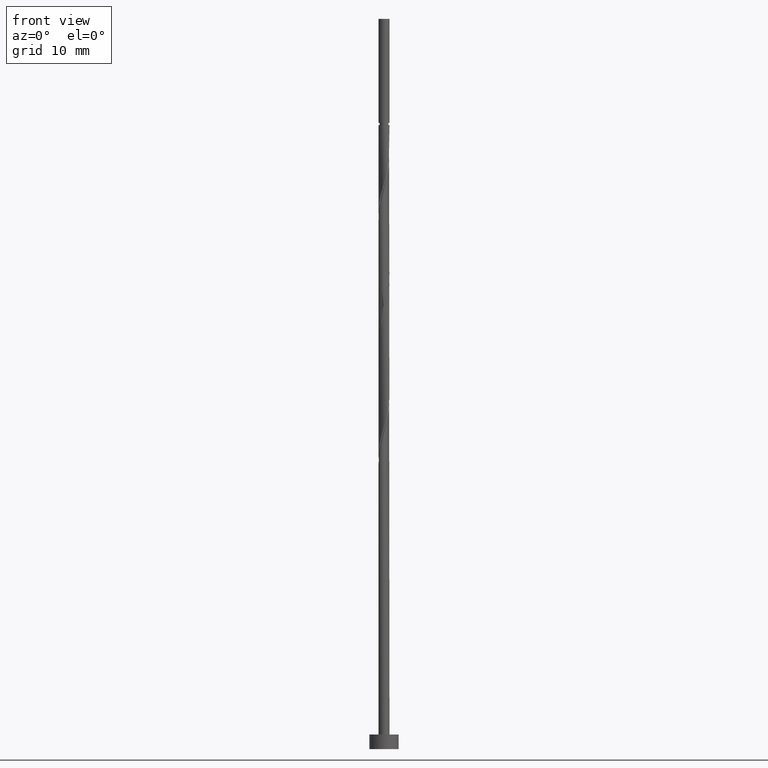
[diagram: clean part render]
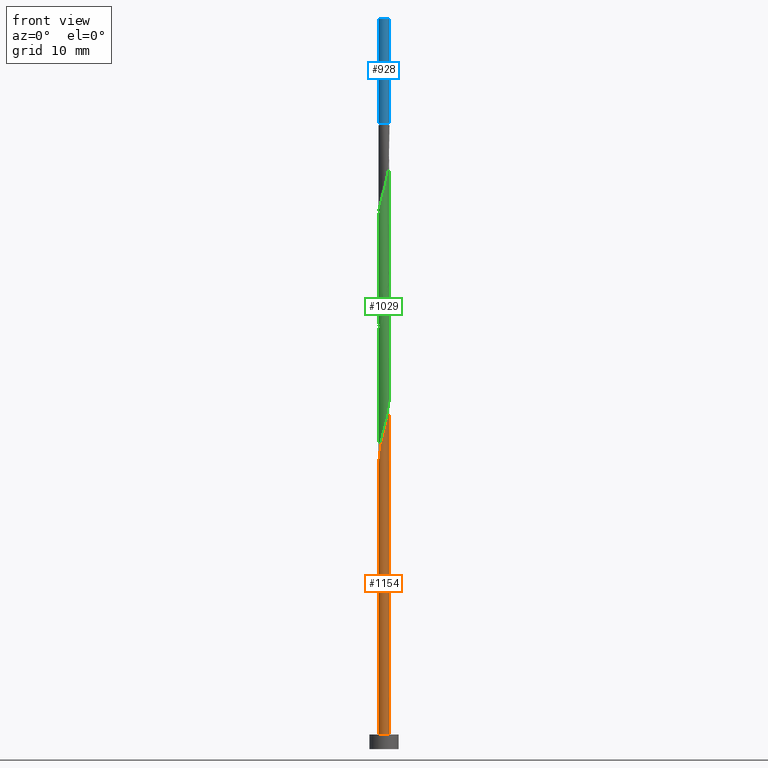
[diagram: same view with three faces highlighted in distinct colors, each labeled with its STEP entity id]
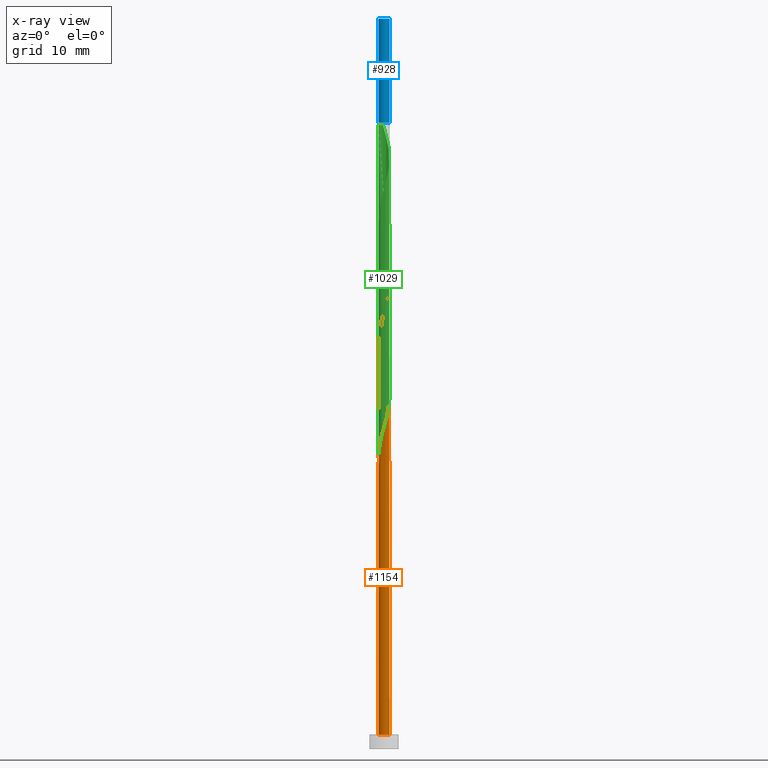
[diagram: x-ray of the same camera — body ghosted, the three highlighted faces saturated]
A machine part, front view with three faces highlighted in distinct colors.
The next image is the same camera in x-ray (body ghosted, the three faces saturated) — at least one of them is partly hidden behind the body in this view.
Their STEP definitions:

[orange] entity #1154 — the highlighted cylindrical surface (bore or boss wall) has radius 0.75 mm, axis along (-0, -0, -1).
#2 = CARTESIAN_POINT ( 'NONE',  ( -0.7111527295645598823, 0.2382473404528950844, 71.56784304584331835 ) ) ;
#8 = CARTESIAN_POINT ( 'NONE',  ( -0.5044158700291510034, 0.5705728983955322686, 70.17895415695438999 ) ) ;
#29 = LINE ( 'NONE', #452, #494 ) ;
#31 = VERTEX_POINT ( 'NONE', #885 ) ;
#39 = DIRECTION ( 'NONE',  ( -1.000000000000000000, 0.000000000000000000, 0.000000000000000000 ) ) ;
#45 = CARTESIAN_POINT ( 'NONE',  ( -0.5619046139985671706, 0.4967526595471062900, 38.23450971250995423 ) ) ;
#63 = CARTESIAN_POINT ( 'NONE',  ( -0.6979170351757160162, -0.2746121119170457647, 40.08636156436179476 ) ) ;
#66 = DIRECTION ( 'NONE',  ( -1.000000000000000000, 0.000000000000000000, 0.000000000000000000 ) ) ;
#69 = CARTESIAN_POINT ( 'NONE',  ( 0.1492481155659928227, -0.7350000000000012079, 43.79006526806549005 ) ) ;
#91 = CARTESIAN_POINT ( 'NONE',  ( -0.2788484463867148544, 0.7086835304058215490, 69.25302823102846617 ) ) ;
#107 = CARTESIAN_POINT ( 'NONE',  ( -0.7463385597360239210, -0.1515505083195083369, 56.29006526806550426 ) ) ;
#114 = ORIENTED_EDGE ( 'NONE', *, *, #139, .F. ) ;
#124 = LINE ( 'NONE', #336, #579 ) ;
#139 = EDGE_CURVE ( 'NONE', #498, #420, #373, .T. ) ;
#147 = CARTESIAN_POINT ( 'NONE',  ( 0.000000000000000000, 0.000000000000000000, 2.000000000000000000 ) ) ;
#156 = DIRECTION ( 'NONE',  ( -0.000000000000000000, -0.000000000000000000, -1.000000000000000000 ) ) ;
#164 = CARTESIAN_POINT ( 'NONE',  ( -0.7500000000000009992, 7.581525522548613133E-16, 39.09254371307674347 ) ) ;
#178 = CARTESIAN_POINT ( 'NONE',  ( -0.7463385597360239210, -0.1515505083195083369, 39.62339860139884706 ) ) ;
#187 = AXIS2_PLACEMENT_3D ( 'NONE', #1203, #1196, #670 ) ;
#193 = CARTESIAN_POINT ( 'NONE',  ( -0.01964778474527090896, 0.7613164695941806448, 68.32710230510254235 ) ) ;
#200 = CARTESIAN_POINT ( 'NONE',  ( 0.1111374524808014519, 0.7417199381546103476, 67.86413934213958044 ) ) ;
#206 = CARTESIAN_POINT ( 'NONE',  ( 0.5867795826949149252, -0.4671078262375646939, 62.30858378658402330 ) ) ;
#214 = CARTESIAN_POINT ( 'NONE',  ( -0.4743137173817256746, -0.5958316035796290544, 58.14191711991736611 ) ) ;
#237 = CARTESIAN_POINT ( 'NONE',  ( 0.2788484463867145768, -0.7086835304058217710, 44.25302823102846617 ) ) ;
#262 = CARTESIAN_POINT ( 'NONE',  ( 0.6494955106154084445, 0.3976737155145829150, 48.88265786065809237 ) ) ;
#271 = DIRECTION ( 'NONE',  ( 0.000000000000000000, -0.000000000000000000, -1.000000000000000000 ) ) ;
#276 = CARTESIAN_POINT ( 'NONE',  ( -0.1111374524808010217, -0.7417199381546104586, 42.86413934213958754 ) ) ;
#284 = CARTESIAN_POINT ( 'NONE',  ( 0.7463385597360239210, 0.1515505083195081981, 47.95673193473217566 ) ) ;
#290 = CARTESIAN_POINT ( 'NONE',  ( 0.2419226897068731397, 0.7221234067150404945, 67.40117637917663274 ) ) ;
#297 = CARTESIAN_POINT ( 'NONE',  ( 0.7111527295645598823, -0.2382473404528953342, 63.23450971250994712 ) ) ;
#304 = CARTESIAN_POINT ( 'NONE',  ( -0.1492481155659927117, 0.7350000000000012079, 35.45673193473216855 ) ) ;
#306 = CARTESIAN_POINT ( 'NONE',  ( 0.6691432953606790690, -0.3636427540795974522, 62.77154674954699232 ) ) ;
#312 = CARTESIAN_POINT ( 'NONE',  ( 0.2419226897068731397, 0.7221234067150404945, 50.73450971250995423 ) ) ;
#314 = VERTEX_POINT ( 'NONE', #1283 ) ;
#317 = AXIS2_PLACEMENT_3D ( 'NONE', #897, #271, #39 ) ;
#324 = DIRECTION ( 'NONE',  ( -0.000000000000000000, -0.000000000000000000, -1.000000000000000000 ) ) ;
#336 = CARTESIAN_POINT ( 'NONE',  ( -0.7500000000000001110, 0.000000000000000000, 100.0000000000000000 ) ) ;
#360 = CARTESIAN_POINT ( 'NONE',  ( -0.6979170351757162383, 0.2746121119170459313, 39.16043563843586384 ) ) ;
#364 = EDGE_LOOP ( 'NONE', ( #1014, #114, #544, #685, #796, #1065, #530, #1251, #1335 ) ) ;
#373 =( BOUNDED_CURVE ( )  B_SPLINE_CURVE ( 2, ( #164, #1313, #1004, #178, #63, #482, #1325, #495, #792, #1220, #276, #802, #69, #237, #488, #1332, #1018, #655, #387, #973, #1232, #284, #1206, #262, #1049, #824, #502, #312, #1353, #715, #1346, #1247, #937, #831, #1263, #810, #623, #610, #1131, #107, #728, #1157, #930, #214, #1362, #722, #403, #923, #410, #1255, #1148, #528, #206, #306, #297, #1143, #1239, #817, #522, #418, #1137, #1270, #630, #290, #200, #193, #1034, #91, #943, #8, #735, #707, #2, #1026, #616 ),
 .UNSPECIFIED., .F., .T. ) 
 B_SPLINE_CURVE_WITH_KNOTS ( ( 3, 2, 2, 2, 2, 2, 2, 2, 2, 2, 2, 2, 2, 2, 2, 2, 2, 2, 2, 2, 2, 2, 2, 2, 2, 2, 2, 2, 2, 2, 2, 2, 2, 2, 2, 2, 2, 3 ),
 ( 0.05452480538552890998, 0.05555555555555558023, 0.06944444444444441977, 0.08333333333333337034, 0.09722222222222220989, 0.1111111111111111605, 0.1250000000000000000, 0.1388888888888888395, 0.1527777777777777901, 0.1666666666666666297, 0.1805555555555555802, 0.1944444444444444198, 0.2083333333333333703, 0.2222222222222222099, 0.2361111111111111605, 0.2500000000000000000, 0.2638888888888888395, 0.2777777777777777901, 0.2916666666666666297, 0.3055555555555555802, 0.3194444444444444198, 0.3333333333333333703, 0.3472222222222222099, 0.3611111111111111605, 0.3750000000000000000, 0.3888888888888888395, 0.4027777777777777901, 0.4166666666666666297, 0.4305555555555555802, 0.4444444444444444198, 0.4583333333333333703, 0.4722222222222222099, 0.4861111111111111605, 0.5000000000000000000, 0.5138888888888888395, 0.5277777777777777901, 0.5416666666666667407, 0.5545248053855287296 ),
 .UNSPECIFIED. ) 
 CURVE ( )  GEOMETRIC_REPRESENTATION_ITEM ( )  RATIONAL_B_SPLINE_CURVE ( ( 0.9071930855141187022, 0.9080659294509664248, 0.9090909090909066181, 0.8952797754656411922, 0.9090909090909066181, 0.8952797754656411922, 0.9090909090909066181, 0.8952797754656411922, 0.9090909090909066181, 0.8952797754656411922, 0.9090909090909066181, 0.8952797754656411922, 0.9090909090909066181, 0.8952797754656411922, 0.9090909090909066181, 0.8952797754656411922, 0.9090909090909066181, 0.8952797754656411922, 0.9090909090909066181, 0.8952797754656411922, 0.9090909090909066181, 0.8952797754656411922, 0.9090909090909066181, 0.8952797754656411922, 0.9090909090909066181, 0.8952797754656411922, 0.9090909090909066181, 0.8952797754656411922, 0.9090909090909066181, 0.8952797754656411922, 0.9090909090909066181, 0.8952797754656411922, 0.9090909090909066181, 0.8952797754656411922, 0.9090909090909066181, 0.8952797754656411922, 0.9090909090909066181, 0.8952797754656411922, 0.9090909090909066181, 0.8952797754656411922, 0.9090909090909066181, 0.8952797754656411922, 0.9090909090909066181, 0.8952797754656411922, 0.9090909090909066181, 0.8952797754656411922, 0.9090909090909066181, 0.8952797754656411922, 0.9090909090909066181, 0.8952797754656411922, 0.9090909090909066181, 0.8952797754656411922, 0.9090909090909066181, 0.8952797754656411922, 0.9090909090909066181, 0.8952797754656411922, 0.9090909090909066181, 0.8952797754656411922, 0.9090909090909066181, 0.8952797754656411922, 0.9090909090909066181, 0.8952797754656411922, 0.9090909090909066181, 0.8952797754656411922, 0.9090909090909066181, 0.8952797754656411922, 0.9090909090909066181, 0.8952797754656411922, 0.9090909090909066181, 0.8952797754656411922, 0.9090909090909066181, 0.8952797754656411922, 0.9090909090909066181, 0.8963047551055816076, 0.9071930855141182581 ) ) 
 REPRESENTATION_ITEM ( '' )  );
#374 = CARTESIAN_POINT ( 'NONE',  ( -0.4743137173817259522, 0.5958316035796291654, 37.77154674954699942 ) ) ;
#382 = CYLINDRICAL_SURFACE ( 'NONE', #1262, 0.7500000000000001110 ) ;
#386 = CIRCLE ( 'NONE', #411, 0.7500000000000001110 ) ;
#387 = CARTESIAN_POINT ( 'NONE',  ( 0.7111527295645598823, -0.2382473404528953342, 46.56784304584328282 ) ) ;
#403 = CARTESIAN_POINT ( 'NONE',  ( -0.1111374524808010217, -0.7417199381546104586, 59.53080600880624473 ) ) ;
#410 = CARTESIAN_POINT ( 'NONE',  ( 0.1492481155659928227, -0.7350000000000012079, 60.45673193473216855 ) ) ;
#411 = AXIS2_PLACEMENT_3D ( 'NONE', #147, #1089, #1171 ) ;
#418 = CARTESIAN_POINT ( 'NONE',  ( 0.6494955106154084445, 0.3976737155145829150, 65.54932452732475667 ) ) ;
#420 = VERTEX_POINT ( 'NONE', #762 ) ;
#452 = CARTESIAN_POINT ( 'NONE',  ( -0.7500000000000001110, 0.000000000000000000, 100.0000000000000000 ) ) ;
#456 = CIRCLE ( 'NONE', #187, 0.7500000000000001110 ) ;
#467 = CARTESIAN_POINT ( 'NONE',  ( -0.3581182035442992406, 0.6589775051473349965, 37.30858378658403041 ) ) ;
#472 = CARTESIAN_POINT ( 'NONE',  ( -0.7463385597360241430, 0.1515505083195083647, 39.62339860139884706 ) ) ;
#482 = CARTESIAN_POINT ( 'NONE',  ( -0.6494955106154081115, -0.3976737155145834146, 40.54932452732477088 ) ) ;
#488 = CARTESIAN_POINT ( 'NONE',  ( 0.3916321582079329566, -0.6396282144006767423, 44.71599119399142808 ) ) ;
#494 = VECTOR ( 'NONE', #863, 1000.000000000000000 ) ;
#495 = CARTESIAN_POINT ( 'NONE',  ( -0.4743137173817256746, -0.5958316035796290544, 41.47525045325070181 ) ) ;
#498 = VERTEX_POINT ( 'NONE', #971 ) ;
#502 = CARTESIAN_POINT ( 'NONE',  ( 0.3581182035442994072, 0.6589775051473345524, 50.27154674954698521 ) ) ;
#518 = CARTESIAN_POINT ( 'NONE',  ( 0.1492481155659931280, 0.7350000000000013189, 35.45673193473216855 ) ) ;
#521 = EDGE_CURVE ( 'NONE', #314, #700, #386, .T. ) ;
#522 = CARTESIAN_POINT ( 'NONE',  ( 0.6979170351757161272, 0.2746121119170455427, 65.08636156436180897 ) ) ;
#528 = CARTESIAN_POINT ( 'NONE',  ( 0.5044158700291508923, -0.5705728983955322686, 61.84562082362106850 ) ) ;
#530 = ORIENTED_EDGE ( 'NONE', *, *, #764, .F. ) ;
#540 = CARTESIAN_POINT ( 'NONE',  ( -0.1492481155659927117, 0.7350000000000012079, 35.45673193473216855 ) ) ;
#544 = ORIENTED_EDGE ( 'NONE', *, *, #1010, .T. ) ;
#563 = EDGE_CURVE ( 'NONE', #420, #640, #29, .T. ) ;
#566 = CARTESIAN_POINT ( 'NONE',  ( -0.7500000000000014433, -7.021314277040079810E-16, 40.15425348972093644 ) ) ;
#571 =( BOUNDED_CURVE ( )  B_SPLINE_CURVE ( 2, ( #566, #987, #1322, #472, #360, #1210, #45, #374, #467, #690, #572, #993, #518 ),
 .UNSPECIFIED., .F., .T. ) 
 B_SPLINE_CURVE_WITH_KNOTS ( ( 3, 2, 2, 2, 2, 2, 3 ),
 ( 0.9295248053855290626, 0.9305555555555555802, 0.9444444444444444198, 0.9583333333333333703, 0.9722222222222222099, 0.9861111111111111605, 1.000000000000000000 ),
 .UNSPECIFIED. ) 
 CURVE ( )  GEOMETRIC_REPRESENTATION_ITEM ( )  RATIONAL_B_SPLINE_CURVE ( ( 0.9071930855141208117, 0.9080659294509685342, 0.9090909090909087276, 0.8952797754656430795, 0.9090909090909087276, 0.8952797754656430795, 0.9090909090909087276, 0.8952797754656430795, 0.9090909090909087276, 0.8952797754656430795, 0.9090909090909087276, 0.8952797754656430795, 0.9090909090909087276 ) ) 
 REPRESENTATION_ITEM ( '' )  );
#572 = CARTESIAN_POINT ( 'NONE',  ( -0.1111374524808009523, 0.7417199381546109027, 36.38265786065808527 ) ) ;
#579 = VECTOR ( 'NONE', #324, 1000.000000000000000 ) ;
#610 = CARTESIAN_POINT ( 'NONE',  ( -0.7531621637684404735, 0.1128519268261927722, 55.36413934213959465 ) ) ;
#615 = CARTESIAN_POINT ( 'NONE',  ( -0.2788484463867148544, 0.7086835304058215490, 35.91969489769515178 ) ) ;
#616 = CARTESIAN_POINT ( 'NONE',  ( -0.7500000000000009992, -2.035434192014282670E-16, 72.42587704641009339 ) ) ;
#623 = CARTESIAN_POINT ( 'NONE',  ( -0.7111527295645598823, 0.2382473404528950844, 54.90117637917662563 ) ) ;
#630 = CARTESIAN_POINT ( 'NONE',  ( 0.3581182035442994072, 0.6589775051473345524, 66.93821341621367083 ) ) ;
#640 = VERTEX_POINT ( 'NONE', #1142 ) ;
#655 = CARTESIAN_POINT ( 'NONE',  ( 0.6691432953606790690, -0.3636427540795974522, 46.10488008288032802 ) ) ;
#662 =( BOUNDED_CURVE ( )  B_SPLINE_CURVE ( 2, ( #304, #615, #1038, #1360, #1017, #830, #727, #1147, #1047 ),
 .UNSPECIFIED., .F., .F. ) 
 B_SPLINE_CURVE_WITH_KNOTS ( ( 3, 2, 2, 2, 3 ),
 ( 0.000000000000000000, 0.01388888888888883955, 0.02777777777777779011, 0.04166666666666662966, 0.05452480538552890998 ),
 .UNSPECIFIED. ) 
 CURVE ( )  GEOMETRIC_REPRESENTATION_ITEM ( )  RATIONAL_B_SPLINE_CURVE ( ( 0.9090909090909066181, 0.8952797754656411922, 0.9090909090909066181, 0.8952797754656411922, 0.9090909090909066181, 0.8952797754656411922, 0.9090909090909066181, 0.8963047551055813855, 0.9071930855141187022 ) ) 
 REPRESENTATION_ITEM ( '' )  );
#670 = DIRECTION ( 'NONE',  ( 1.000000000000000000, 0.000000000000000000, 0.000000000000000000 ) ) ;
#685 = ORIENTED_EDGE ( 'NONE', *, *, #521, .T. ) ;
#690 = CARTESIAN_POINT ( 'NONE',  ( -0.2419226897068727788, 0.7221234067150408276, 36.84562082362106850 ) ) ;
#700 = VERTEX_POINT ( 'NONE', #936 ) ;
#707 = CARTESIAN_POINT ( 'NONE',  ( -0.6691432953606790690, 0.3636427540795973967, 71.10488008288032802 ) ) ;
#715 = CARTESIAN_POINT ( 'NONE',  ( -0.01964778474527090896, 0.7613164695941806448, 51.66043563843587805 ) ) ;
#722 = CARTESIAN_POINT ( 'NONE',  ( -0.2419226897068726401, -0.7221234067150404945, 59.06784304584328993 ) ) ;
#727 = CARTESIAN_POINT ( 'NONE',  ( -0.7111527295645598823, 0.2382473404528950844, 38.23450971250994712 ) ) ;
#728 = CARTESIAN_POINT ( 'NONE',  ( -0.6979170351757160162, -0.2746121119170457647, 56.75302823102847327 ) ) ;
#735 = CARTESIAN_POINT ( 'NONE',  ( -0.5867795826949149252, 0.4671078262375646939, 70.64191711991735190 ) ) ;
#762 = CARTESIAN_POINT ( 'NONE',  ( -0.7500000000000009992, -2.035434192014282670E-16, 72.42587704641009339 ) ) ;
#764 = EDGE_CURVE ( 'NONE', #813, #498, #662, .T. ) ;
#792 = CARTESIAN_POINT ( 'NONE',  ( -0.3581182035442992961, -0.6589775051473345524, 41.93821341621366372 ) ) ;
#796 = ORIENTED_EDGE ( 'NONE', *, *, #1055, .T. ) ;
#802 = CARTESIAN_POINT ( 'NONE',  ( 0.01964778474527069732, -0.7613164695941807558, 43.32710230510255656 ) ) ;
#810 = CARTESIAN_POINT ( 'NONE',  ( -0.6691432953606790690, 0.3636427540795973967, 54.43821341621366372 ) ) ;
#813 = VERTEX_POINT ( 'NONE', #540 ) ;
#817 = CARTESIAN_POINT ( 'NONE',  ( 0.7463385597360239210, 0.1515505083195081981, 64.62339860139884706 ) ) ;
#824 = CARTESIAN_POINT ( 'NONE',  ( 0.4743137173817257857, 0.5958316035796289434, 49.80858378658402330 ) ) ;
#830 = CARTESIAN_POINT ( 'NONE',  ( -0.6691432953606790690, 0.3636427540795973967, 37.77154674954699942 ) ) ;
#831 = CARTESIAN_POINT ( 'NONE',  ( -0.5044158700291510034, 0.5705728983955322686, 53.51228749028773279 ) ) ;
#863 = DIRECTION ( 'NONE',  ( -0.000000000000000000, -0.000000000000000000, -1.000000000000000000 ) ) ;
#885 = CARTESIAN_POINT ( 'NONE',  ( 0.1492481155659931280, 0.7350000000000013189, 35.45673193473216855 ) ) ;
#897 = CARTESIAN_POINT ( 'NONE',  ( 0.000000000000000000, 0.000000000000000000, 35.45673193473216855 ) ) ;
#923 = CARTESIAN_POINT ( 'NONE',  ( 0.01964778474527069732, -0.7613164695941807558, 59.99376897176922085 ) ) ;
#930 = CARTESIAN_POINT ( 'NONE',  ( -0.5619046139985669486, -0.4967526595471060125, 57.67895415695437578 ) ) ;
#936 = CARTESIAN_POINT ( 'NONE',  ( 0.7500000000000001110, 0.000000000000000000, 2.000000000000000000 ) ) ;
#937 = CARTESIAN_POINT ( 'NONE',  ( -0.3916321582079329566, 0.6396282144006767423, 53.04932452732476378 ) ) ;
#943 = CARTESIAN_POINT ( 'NONE',  ( -0.3916321582079329566, 0.6396282144006767423, 69.71599119399144229 ) ) ;
#971 = CARTESIAN_POINT ( 'NONE',  ( -0.7500000000000009992, 7.581525522548613133E-16, 39.09254371307674347 ) ) ;
#973 = CARTESIAN_POINT ( 'NONE',  ( 0.7531621637684404735, -0.1128519268261931191, 47.03080600880625184 ) ) ;
#987 = CARTESIAN_POINT ( 'NONE',  ( -0.7500000000000013323, 0.009676255749015327118, 40.12023611578857896 ) ) ;
#993 = CARTESIAN_POINT ( 'NONE',  ( 0.01964778474527093324, 0.7613164695941809779, 35.91969489769513757 ) ) ;
#1004 = CARTESIAN_POINT ( 'NONE',  ( -0.7497503617522318642, -0.01934929074665777890, 39.16043563843587805 ) ) ;
#1010 = EDGE_CURVE ( 'NONE', #498, #314, #124, .T. ) ;
#1014 = ORIENTED_EDGE ( 'NONE', *, *, #563, .F. ) ;
#1017 = CARTESIAN_POINT ( 'NONE',  ( -0.5867795826949149252, 0.4671078262375646939, 37.30858378658403041 ) ) ;
#1018 = CARTESIAN_POINT ( 'NONE',  ( 0.5867795826949149252, -0.4671078262375646939, 45.64191711991735900 ) ) ;
#1026 = CARTESIAN_POINT ( 'NONE',  ( -0.7499999999999997780, 0.1222907788653462419, 71.99595753404443599 ) ) ;
#1034 = CARTESIAN_POINT ( 'NONE',  ( -0.1492481155659927117, 0.7350000000000012079, 68.79006526806551847 ) ) ;
#1038 = CARTESIAN_POINT ( 'NONE',  ( -0.3916321582079329566, 0.6396282144006767423, 36.38265786065809948 ) ) ;
#1047 = CARTESIAN_POINT ( 'NONE',  ( -0.7500000000000009992, 7.581525522548613133E-16, 39.09254371307674347 ) ) ;
#1049 = CARTESIAN_POINT ( 'NONE',  ( 0.5619046139985668376, 0.4967526595471062345, 49.34562082362106850 ) ) ;
#1055 = EDGE_CURVE ( 'NONE', #700, #314, #456, .T. ) ;
#1063 = CIRCLE ( 'NONE', #317, 0.7500000000000001110 ) ;
#1065 = ORIENTED_EDGE ( 'NONE', *, *, #1010, .F. ) ;
#1089 = DIRECTION ( 'NONE',  ( 0.000000000000000000, 0.000000000000000000, 1.000000000000000000 ) ) ;
#1109 = CARTESIAN_POINT ( 'NONE',  ( 0.000000000000000000, 0.000000000000000000, 100.0000000000000000 ) ) ;
#1131 = CARTESIAN_POINT ( 'NONE',  ( -0.7497503617522318642, -0.01934929074665777890, 55.82710230510255656 ) ) ;
#1137 = CARTESIAN_POINT ( 'NONE',  ( 0.5619046139985668376, 0.4967526595471062345, 66.01228749028773279 ) ) ;
#1142 = CARTESIAN_POINT ( 'NONE',  ( -0.7500000000000014433, -7.021314277040079810E-16, 40.15425348972093644 ) ) ;
#1143 = CARTESIAN_POINT ( 'NONE',  ( 0.7531621637684404735, -0.1128519268261931191, 63.69747267547291614 ) ) ;
#1147 = CARTESIAN_POINT ( 'NONE',  ( -0.7500000000000004441, 0.1222907788653445349, 38.66262420071113581 ) ) ;
#1148 = CARTESIAN_POINT ( 'NONE',  ( 0.3916321582079329566, -0.6396282144006767423, 61.38265786065810659 ) ) ;
#1154 = ADVANCED_FACE ( 'NONE', ( #1305 ), #382, .T. ) ;
#1157 = CARTESIAN_POINT ( 'NONE',  ( -0.6494955106154081115, -0.3976737155145834146, 57.21599119399142808 ) ) ;
#1171 = DIRECTION ( 'NONE',  ( 1.000000000000000000, 0.000000000000000000, 0.000000000000000000 ) ) ;
#1196 = DIRECTION ( 'NONE',  ( 0.000000000000000000, 0.000000000000000000, 1.000000000000000000 ) ) ;
#1203 = CARTESIAN_POINT ( 'NONE',  ( 0.000000000000000000, 0.000000000000000000, 2.000000000000000000 ) ) ;
#1206 = CARTESIAN_POINT ( 'NONE',  ( 0.6979170351757161272, 0.2746121119170455427, 48.41969489769512336 ) ) ;
#1210 = CARTESIAN_POINT ( 'NONE',  ( -0.6494955106154085556, 0.3976737155145836922, 38.69747267547292324 ) ) ;
#1220 = CARTESIAN_POINT ( 'NONE',  ( -0.2419226897068726401, -0.7221234067150404945, 42.40117637917662563 ) ) ;
#1232 = CARTESIAN_POINT ( 'NONE',  ( 0.7497503617522318642, 0.01934929074665785176, 47.49376897176921375 ) ) ;
#1239 = CARTESIAN_POINT ( 'NONE',  ( 0.7497503617522318642, 0.01934929074665785176, 64.16043563843587094 ) ) ;
#1246 = EDGE_CURVE ( 'NONE', #813, #31, #1063, .T. ) ;
#1247 = CARTESIAN_POINT ( 'NONE',  ( -0.2788484463867148544, 0.7086835304058215490, 52.58636156436181608 ) ) ;
#1251 = ORIENTED_EDGE ( 'NONE', *, *, #1246, .T. ) ;
#1255 = CARTESIAN_POINT ( 'NONE',  ( 0.2788484463867145768, -0.7086835304058217710, 60.91969489769514468 ) ) ;
#1262 = AXIS2_PLACEMENT_3D ( 'NONE', #1109, #156, #66 ) ;
#1263 = CARTESIAN_POINT ( 'NONE',  ( -0.5867795826949149252, 0.4671078262375646939, 53.97525045325069470 ) ) ;
#1265 = EDGE_CURVE ( 'NONE', #640, #31, #571, .T. ) ;
#1270 = CARTESIAN_POINT ( 'NONE',  ( 0.4743137173817257857, 0.5958316035796289434, 66.47525045325069470 ) ) ;
#1283 = CARTESIAN_POINT ( 'NONE',  ( -0.7500000000000001110, 0.000000000000000000, 2.000000000000000000 ) ) ;
#1305 = FACE_OUTER_BOUND ( 'NONE', #364, .T. ) ;
#1313 = CARTESIAN_POINT ( 'NONE',  ( -0.7500000000000009992, -0.009676255749013838725, 39.12656108700910096 ) ) ;
#1322 = CARTESIAN_POINT ( 'NONE',  ( -0.7497503617522321973, 0.01934929074665782747, 40.08636156436180897 ) ) ;
#1325 = CARTESIAN_POINT ( 'NONE',  ( -0.5619046139985669486, -0.4967526595471060125, 41.01228749028771858 ) ) ;
#1332 = CARTESIAN_POINT ( 'NONE',  ( 0.5044158700291508923, -0.5705728983955322686, 45.17895415695440420 ) ) ;
#1335 = ORIENTED_EDGE ( 'NONE', *, *, #1265, .F. ) ;
#1346 = CARTESIAN_POINT ( 'NONE',  ( -0.1492481155659927117, 0.7350000000000012079, 52.12339860139883285 ) ) ;
#1353 = CARTESIAN_POINT ( 'NONE',  ( 0.1111374524808014519, 0.7417199381546103476, 51.19747267547291614 ) ) ;
#1360 = CARTESIAN_POINT ( 'NONE',  ( -0.5044158700291510034, 0.5705728983955322686, 36.84562082362106850 ) ) ;
#1362 = CARTESIAN_POINT ( 'NONE',  ( -0.3581182035442992961, -0.6589775051473345524, 58.60488008288032802 ) ) ;

[blue] entity #928 — the highlighted cylindrical surface (edge-blend (fillet) strip) has radius 0.75 mm, axis along (-0, -0, -1).
#10 = ORIENTED_EDGE ( 'NONE', *, *, #1130, .T. ) ;
#112 = DIRECTION ( 'NONE',  ( -1.000000000000000000, 0.000000000000000000, 0.000000000000000000 ) ) ;
#196 = EDGE_CURVE ( 'NONE', #320, #1174, #625, .T. ) ;
#209 = AXIS2_PLACEMENT_3D ( 'NONE', #509, #602, #112 ) ;
#216 = VERTEX_POINT ( 'NONE', #352 ) ;
#249 = DIRECTION ( 'NONE',  ( 0.000000000000000000, 0.000000000000000000, 1.000000000000000000 ) ) ;
#265 = CARTESIAN_POINT ( 'NONE',  ( -0.7500000000000015543, 0.000000000000000000, 85.75673193473217282 ) ) ;
#287 = ORIENTED_EDGE ( 'NONE', *, *, #401, .F. ) ;
#296 = EDGE_CURVE ( 'NONE', #839, #320, #1276, .T. ) ;
#299 = VECTOR ( 'NONE', #876, 1000.000000000000000 ) ;
#320 = VERTEX_POINT ( 'NONE', #742 ) ;
#350 = CARTESIAN_POINT ( 'NONE',  ( 0.7500000000000001110, 9.184850993605150903E-17, 100.0000000000000000 ) ) ;
#352 = CARTESIAN_POINT ( 'NONE',  ( -0.7500000000000001110, 0.000000000000000000, 100.0000000000000000 ) ) ;
#401 = EDGE_CURVE ( 'NONE', #216, #839, #1022, .T. ) ;
#443 = DIRECTION ( 'NONE',  ( -1.000000000000000000, 0.000000000000000000, 0.000000000000000000 ) ) ;
#509 = CARTESIAN_POINT ( 'NONE',  ( 0.000000000000000000, 0.000000000000000000, 85.75673193473217282 ) ) ;
#602 = DIRECTION ( 'NONE',  ( -0.000000000000000000, -0.000000000000000000, -1.000000000000000000 ) ) ;
#625 = CIRCLE ( 'NONE', #209, 0.7500000000000015543 ) ;
#648 = ORIENTED_EDGE ( 'NONE', *, *, #196, .F. ) ;
#657 = CARTESIAN_POINT ( 'NONE',  ( 0.000000000000000000, 0.000000000000000000, 100.0000000000000000 ) ) ;
#689 = AXIS2_PLACEMENT_3D ( 'NONE', #977, #249, #955 ) ;
#742 = CARTESIAN_POINT ( 'NONE',  ( 0.7500000000000014433, 9.184850993605166926E-17, 85.75673193473217282 ) ) ;
#753 = FACE_OUTER_BOUND ( 'NONE', #1285, .T. ) ;
#827 = ORIENTED_EDGE ( 'NONE', *, *, #296, .F. ) ;
#839 = VERTEX_POINT ( 'NONE', #350 ) ;
#842 = VECTOR ( 'NONE', #963, 1000.000000000000000 ) ;
#876 = DIRECTION ( 'NONE',  ( -0.000000000000000000, -0.000000000000000000, -1.000000000000000000 ) ) ;
#928 = ADVANCED_FACE ( 'NONE', ( #753 ), #1191, .T. ) ;
#955 = DIRECTION ( 'NONE',  ( 1.000000000000000000, 0.000000000000000000, 0.000000000000000000 ) ) ;
#961 = DIRECTION ( 'NONE',  ( -0.000000000000000000, -0.000000000000000000, -1.000000000000000000 ) ) ;
#963 = DIRECTION ( 'NONE',  ( -0.000000000000000000, -0.000000000000000000, -1.000000000000000000 ) ) ;
#977 = CARTESIAN_POINT ( 'NONE',  ( 0.000000000000000000, 0.000000000000000000, 100.0000000000000000 ) ) ;
#1007 = LINE ( 'NONE', #1217, #299 ) ;
#1022 = CIRCLE ( 'NONE', #689, 0.7500000000000001110 ) ;
#1130 = EDGE_CURVE ( 'NONE', #216, #1174, #1007, .T. ) ;
#1174 = VERTEX_POINT ( 'NONE', #265 ) ;
#1178 = AXIS2_PLACEMENT_3D ( 'NONE', #657, #961, #443 ) ;
#1186 = CARTESIAN_POINT ( 'NONE',  ( 0.7500000000000001110, 9.184850993605150903E-17, 100.0000000000000000 ) ) ;
#1191 = CYLINDRICAL_SURFACE ( 'NONE', #1178, 0.7500000000000001110 ) ;
#1217 = CARTESIAN_POINT ( 'NONE',  ( -0.7500000000000001110, 0.000000000000000000, 100.0000000000000000 ) ) ;
#1276 = LINE ( 'NONE', #1186, #842 ) ;
#1285 = EDGE_LOOP ( 'NONE', ( #827, #287, #10, #648 ) ) ;

[green] entity #1029 — the highlighted cylindrical surface (bore or boss wall) has radius 0.75 mm, axis along (-0, -0, -1).
#4 = ORIENTED_EDGE ( 'NONE', *, *, #724, .F. ) ;
#29 = LINE ( 'NONE', #452, #494 ) ;
#41 = CARTESIAN_POINT ( 'NONE',  ( -0.6691432953606796241, -0.3636427540795975633, 58.14191711991735190 ) ) ;
#47 = CARTESIAN_POINT ( 'NONE',  ( -0.7500000000000014433, -7.021314277040079810E-16, 40.15425348972093644 ) ) ;
#51 = CARTESIAN_POINT ( 'NONE',  ( 0.7500000000000015543, 3.940152426743236263E-16, 65.15425348972092934 ) ) ;
#53 = CARTESIAN_POINT ( 'NONE',  ( -0.5619046139985671706, 0.4967526595471062900, 54.90117637917661852 ) ) ;
#62 = CARTESIAN_POINT ( 'NONE',  ( -0.7111527295645602154, -0.2382473404528949179, 57.67895415695439709 ) ) ;
#68 = CARTESIAN_POINT ( 'NONE',  ( -0.7500000000000014433, 0.000000000000000000, 85.45673193473217566 ) ) ;
#84 = CARTESIAN_POINT ( 'NONE',  ( 0.1492481155659928227, -0.7350000000000012079, 77.12339860139884706 ) ) ;
#97 = CARTESIAN_POINT ( 'NONE',  ( -0.2419226897068726401, -0.7221234067150404945, 75.73450971250993291 ) ) ;
#101 = VECTOR ( 'NONE', #1243, 1000.000000000000000 ) ;
#116 = CYLINDRICAL_SURFACE ( 'NONE', #343, 0.7500000000000001110 ) ;
#121 = VERTEX_POINT ( 'NONE', #900 ) ;
#133 = CARTESIAN_POINT ( 'NONE',  ( -0.1492481155659876324, 0.7350000000000022071, 85.45673193473216145 ) ) ;
#150 = CARTESIAN_POINT ( 'NONE',  ( 0.5044158700291515585, 0.5705728983955323796, 67.40117637917661852 ) ) ;
#152 = CARTESIAN_POINT ( 'NONE',  ( -0.3916321582079331787, -0.6396282144006771864, 59.53080600880625184 ) ) ;
#158 = CARTESIAN_POINT ( 'NONE',  ( 0.7497503617522324193, -0.01934929074665811544, 48.41969489769514468 ) ) ;
#163 = CARTESIAN_POINT ( 'NONE',  ( 0.3581182035442992406, -0.6589775051473349965, 62.30858378658402330 ) ) ;
#167 = CARTESIAN_POINT ( 'NONE',  ( -0.7497503617522321973, 0.01934929074665782747, 73.41969489769512336 ) ) ;
#169 = LINE ( 'NONE', #1231, #1155 ) ;
#176 = CARTESIAN_POINT ( 'NONE',  ( -0.4743137173817259522, 0.5958316035796291654, 54.43821341621365661 ) ) ;
#197 = VERTEX_POINT ( 'NONE', #1289 ) ;
#205 = CARTESIAN_POINT ( 'NONE',  ( -0.1111374524808010217, -0.7417199381546104586, 76.19747267547292324 ) ) ;
#253 = DIRECTION ( 'NONE',  ( -1.000000000000000000, 0.000000000000000000, 0.000000000000000000 ) ) ;
#255 = CARTESIAN_POINT ( 'NONE',  ( -0.6979170351757162383, 0.2746121119170459313, 55.82710230510253524 ) ) ;
#259 = CARTESIAN_POINT ( 'NONE',  ( -0.4743137173817259522, 0.5958316035796291654, 71.10488008288032802 ) ) ;
#261 = DIRECTION ( 'NONE',  ( -0.000000000000000000, -0.000000000000000000, -1.000000000000000000 ) ) ;
#267 = CARTESIAN_POINT ( 'NONE',  ( 0.5619046139985670596, -0.4967526595471066231, 46.56784304584328282 ) ) ;
#274 = CARTESIAN_POINT ( 'NONE',  ( 0.4743137173817259522, -0.5958316035796291654, 62.77154674954699232 ) ) ;
#283 = CARTESIAN_POINT ( 'NONE',  ( 0.6691432953606796241, 0.3636427540795975077, 49.80858378658403041 ) ) ;
#295 = CARTESIAN_POINT ( 'NONE',  ( 0.7463385597360239210, 0.1515505083195081981, 81.29006526806550426 ) ) ;
#311 = CARTESIAN_POINT ( 'NONE',  ( -0.7500000000000011102, -0.009676255749012072777, 72.45989442034243666 ) ) ;
#316 = CARTESIAN_POINT ( 'NONE',  ( -0.7500000000000009992, -2.035434192014282670E-16, 72.42587704641009339 ) ) ;
#343 = AXIS2_PLACEMENT_3D ( 'NONE', #968, #437, #450 ) ;
#357 = CARTESIAN_POINT ( 'NONE',  ( -0.7531621637684410286, -0.1128519268261926889, 57.21599119399144229 ) ) ;
#363 = CARTESIAN_POINT ( 'NONE',  ( -0.2419226897068727788, 0.7221234067150408276, 53.51228749028773279 ) ) ;
#367 = DIRECTION ( 'NONE',  ( -0.000000000000000000, -0.000000000000000000, -1.000000000000000000 ) ) ;
#369 = CARTESIAN_POINT ( 'NONE',  ( 0.7463385597360241430, -0.1515505083195084757, 47.95673193473218276 ) ) ;
#376 = CARTESIAN_POINT ( 'NONE',  ( -0.3581182035442992406, 0.6589775051473349965, 53.97525045325069470 ) ) ;
#384 =( BOUNDED_CURVE ( )  B_SPLINE_CURVE ( 2, ( #316, #311, #409, #1025, #721, #601, #922, #417, #1245, #97, #205, #836, #84, #622, #508, #1345, #1156, #1352, #1261, #706, #501, #295, #713, #809, #822, #1136, #423, #929, #493, #1254, #734 ),
 .UNSPECIFIED., .F., .T. ) 
 B_SPLINE_CURVE_WITH_KNOTS ( ( 3, 2, 2, 2, 2, 2, 2, 2, 2, 2, 2, 2, 2, 2, 2, 3 ),
 ( 0.5545248053855287296, 0.5555555555555555802, 0.5694444444444444198, 0.5833333333333332593, 0.5972222222222222099, 0.6111111111111112715, 0.6250000000000001110, 0.6388888888888889506, 0.6527777777777779011, 0.6666666666666668517, 0.6805555555555556912, 0.6944444444444445308, 0.7083333333333334814, 0.7222222222222224319, 0.7361111111111113825, 0.7500000000000002220 ),
 .UNSPECIFIED. ) 
 CURVE ( )  GEOMETRIC_REPRESENTATION_ITEM ( )  RATIONAL_B_SPLINE_CURVE ( ( 0.9071930855141182581, 0.9080659294509662027, 0.9090909090909066181, 0.8952797754656411922, 0.9090909090909066181, 0.8952797754656411922, 0.9090909090909066181, 0.8952797754656411922, 0.9090909090909066181, 0.8952797754656411922, 0.9090909090909066181, 0.8952797754656411922, 0.9090909090909066181, 0.8952797754656411922, 0.9090909090909066181, 0.8952797754656411922, 0.9090909090909066181, 0.8952797754656411922, 0.9090909090909066181, 0.8952797754656411922, 0.9090909090909066181, 0.8952797754656411922, 0.9090909090909066181, 0.8952797754656411922, 0.9090909090909066181, 0.8952797754656411922, 0.9090909090909066181, 0.8952797754656411922, 0.9090909090909066181, 0.8952797754656409701, 0.9090909090909068402 ) ) 
 REPRESENTATION_ITEM ( '' )  );
#385 = CARTESIAN_POINT ( 'NONE',  ( 0.2788484463867149654, 0.7086835304058219931, 51.66043563843587805 ) ) ;
#409 = CARTESIAN_POINT ( 'NONE',  ( -0.7497503617522318642, -0.01934929074665777890, 72.49376897176922796 ) ) ;
#417 = CARTESIAN_POINT ( 'NONE',  ( -0.4743137173817256746, -0.5958316035796290544, 74.80858378658402330 ) ) ;
#420 = VERTEX_POINT ( 'NONE', #762 ) ;
#423 = CARTESIAN_POINT ( 'NONE',  ( 0.3581182035442994072, 0.6589775051473345524, 83.60488008288032802 ) ) ;
#437 = DIRECTION ( 'NONE',  ( -0.000000000000000000, -0.000000000000000000, -1.000000000000000000 ) ) ;
#450 = DIRECTION ( 'NONE',  ( -1.000000000000000000, 0.000000000000000000, 0.000000000000000000 ) ) ;
#452 = CARTESIAN_POINT ( 'NONE',  ( -0.7500000000000001110, 0.000000000000000000, 100.0000000000000000 ) ) ;
#462 = CARTESIAN_POINT ( 'NONE',  ( -0.6494955106154085556, 0.3976737155145836922, 72.03080600880623763 ) ) ;
#464 = CARTESIAN_POINT ( 'NONE',  ( 0.6494955106154085556, -0.3976737155145839697, 63.69747267547293035 ) ) ;
#469 = CARTESIAN_POINT ( 'NONE',  ( 0.2419226897068726678, -0.7221234067150408276, 61.84562082362107560 ) ) ;
#474 = CARTESIAN_POINT ( 'NONE',  ( 0.7497503617522324193, -0.01934929074665811544, 65.08636156436179476 ) ) ;
#480 = CARTESIAN_POINT ( 'NONE',  ( 0.3581182035442992406, -0.6589775051473349965, 45.64191711991736611 ) ) ;
#487 = CARTESIAN_POINT ( 'NONE',  ( -0.1492481155659930447, -0.7350000000000013189, 43.79006526806550426 ) ) ;
#493 = CARTESIAN_POINT ( 'NONE',  ( 0.1111374524808014519, 0.7417199381546103476, 84.53080600880625184 ) ) ;
#494 = VECTOR ( 'NONE', #863, 1000.000000000000000 ) ;
#501 = CARTESIAN_POINT ( 'NONE',  ( 0.7497503617522318642, 0.01934929074665785176, 80.82710230510257077 ) ) ;
#508 = CARTESIAN_POINT ( 'NONE',  ( 0.3916321582079329566, -0.6396282144006767423, 78.04932452732477088 ) ) ;
#524 = ORIENTED_EDGE ( 'NONE', *, *, #1172, .T. ) ;
#537 = VERTEX_POINT ( 'NONE', #133 ) ;
#563 = EDGE_CURVE ( 'NONE', #420, #640, #29, .T. ) ;
#568 = CARTESIAN_POINT ( 'NONE',  ( 0.5619046139985670596, -0.4967526595471066231, 63.23450971250994712 ) ) ;
#574 = CARTESIAN_POINT ( 'NONE',  ( 0.1111374524808008968, -0.7417199381546109027, 61.38265786065809237 ) ) ;
#578 = EDGE_CURVE ( 'NONE', #197, #640, #1187, .T. ) ;
#580 = CARTESIAN_POINT ( 'NONE',  ( -0.7500000000000013323, 2.614319145706412422E-16, 73.48758682305425793 ) ) ;
#582 = CARTESIAN_POINT ( 'NONE',  ( -0.1492481155659930447, -0.7350000000000013189, 60.45673193473216855 ) ) ;
#585 = CARTESIAN_POINT ( 'NONE',  ( 0.7500000000000012212, 0.1222907788653436606, 65.58417300208655831 ) ) ;
#587 = CARTESIAN_POINT ( 'NONE',  ( -0.7463385597360241430, 0.1515505083195083647, 56.29006526806551136 ) ) ;
#595 = CARTESIAN_POINT ( 'NONE',  ( 0.5867795826949154803, 0.4671078262375646939, 50.27154674954698521 ) ) ;
#601 = CARTESIAN_POINT ( 'NONE',  ( -0.6494955106154081115, -0.3976737155145834146, 73.88265786065808527 ) ) ;
#604 = EDGE_CURVE ( 'NONE', #613, #121, #169, .T. ) ;
#613 = VERTEX_POINT ( 'NONE', #68 ) ;
#622 = CARTESIAN_POINT ( 'NONE',  ( 0.2788484463867145768, -0.7086835304058217710, 77.58636156436178055 ) ) ;
#627 = EDGE_LOOP ( 'NONE', ( #1030, #524, #4, #1266, #1213, #1235, #1159, #1150 ) ) ;
#640 = VERTEX_POINT ( 'NONE', #1142 ) ;
#663 = CARTESIAN_POINT ( 'NONE',  ( -0.7463385597360241430, 0.1515505083195083647, 72.95673193473217566 ) ) ;
#672 = CARTESIAN_POINT ( 'NONE',  ( -0.5044158700291511144, -0.5705728983955326017, 42.40117637917662563 ) ) ;
#675 = CARTESIAN_POINT ( 'NONE',  ( 0.2788484463867149654, 0.7086835304058219931, 68.32710230510254235 ) ) ;
#677 = CARTESIAN_POINT ( 'NONE',  ( -0.2788484463867152430, -0.7086835304058217710, 59.99376897176920664 ) ) ;
#684 = CARTESIAN_POINT ( 'NONE',  ( 0.6979170351757162383, -0.2746121119170458202, 47.49376897176921375 ) ) ;
#692 = CARTESIAN_POINT ( 'NONE',  ( 0.5044158700291515585, 0.5705728983955323796, 50.73450971250996133 ) ) ;
#699 = CARTESIAN_POINT ( 'NONE',  ( -0.1111374524808009523, 0.7417199381546109027, 53.04932452732476378 ) ) ;
#703 = VERTEX_POINT ( 'NONE', #816 ) ;
#706 = CARTESIAN_POINT ( 'NONE',  ( 0.7531621637684404735, -0.1128519268261931191, 80.36413934213960886 ) ) ;
#713 = CARTESIAN_POINT ( 'NONE',  ( 0.6979170351757161272, 0.2746121119170455427, 81.75302823102848038 ) ) ;
#719 = LINE ( 'NONE', #1336, #101 ) ;
#721 = CARTESIAN_POINT ( 'NONE',  ( -0.6979170351757160162, -0.2746121119170457647, 73.41969489769513757 ) ) ;
#724 = EDGE_CURVE ( 'NONE', #420, #537, #384, .T. ) ;
#734 = CARTESIAN_POINT ( 'NONE',  ( -0.1492481155659876324, 0.7350000000000020961, 85.45673193473216145 ) ) ;
#762 = CARTESIAN_POINT ( 'NONE',  ( -0.7500000000000009992, -2.035434192014282670E-16, 72.42587704641009339 ) ) ;
#772 = CARTESIAN_POINT ( 'NONE',  ( 0.1492481155659931003, 0.7350000000000013189, 52.12339860139883996 ) ) ;
#776 = CARTESIAN_POINT ( 'NONE',  ( -0.5619046139985671706, 0.4967526595471062900, 71.56784304584328993 ) ) ;
#778 = CARTESIAN_POINT ( 'NONE',  ( 0.3916321582079335117, 0.6396282144006770753, 51.19747267547291614 ) ) ;
#785 = CARTESIAN_POINT ( 'NONE',  ( 0.4743137173817259522, -0.5958316035796291654, 46.10488008288031381 ) ) ;
#789 = CARTESIAN_POINT ( 'NONE',  ( -0.6979170351757162383, 0.2746121119170459313, 72.49376897176922796 ) ) ;
#791 = CARTESIAN_POINT ( 'NONE',  ( 0.7500000000000013323, -0.009676255749014584656, 65.12023611578855764 ) ) ;
#799 = CARTESIAN_POINT ( 'NONE',  ( -0.7500000000000013323, 0.009676255749014759863, 73.45356944912188624 ) ) ;
#801 = CARTESIAN_POINT ( 'NONE',  ( 0.6494955106154085556, -0.3976737155145839697, 47.03080600880625894 ) ) ;
#809 = CARTESIAN_POINT ( 'NONE',  ( 0.6494955106154084445, 0.3976737155145829150, 82.21599119399145650 ) ) ;
#816 = CARTESIAN_POINT ( 'NONE',  ( 0.7500000000000001110, 9.184850993605150903E-17, 85.45673193473217566 ) ) ;
#822 = CARTESIAN_POINT ( 'NONE',  ( 0.5619046139985668376, 0.4967526595471062345, 82.67895415695440420 ) ) ;
#836 = CARTESIAN_POINT ( 'NONE',  ( 0.01964778474527069732, -0.7613164695941807558, 76.66043563843588515 ) ) ;
#863 = DIRECTION ( 'NONE',  ( -0.000000000000000000, -0.000000000000000000, -1.000000000000000000 ) ) ;
#878 = CARTESIAN_POINT ( 'NONE',  ( 0.7531621637684410286, 0.1128519268261922448, 48.88265786065810659 ) ) ;
#882 = CARTESIAN_POINT ( 'NONE',  ( 0.3916321582079335117, 0.6396282144006770753, 67.86413934213958044 ) ) ;
#884 = CARTESIAN_POINT ( 'NONE',  ( 0.7463385597360241430, -0.1515505083195084757, 64.62339860139884706 ) ) ;
#890 = CARTESIAN_POINT ( 'NONE',  ( 0.7111527295645601043, 0.2382473404528952232, 66.01228749028773279 ) ) ;
#893 = CARTESIAN_POINT ( 'NONE',  ( 0.6979170351757162383, -0.2746121119170458202, 64.16043563843585673 ) ) ;
#899 = CARTESIAN_POINT ( 'NONE',  ( -0.2788484463867152430, -0.7086835304058217710, 43.32710230510254945 ) ) ;
#900 = CARTESIAN_POINT ( 'NONE',  ( -0.7500000000000013323, 2.614319145706412422E-16, 73.48758682305425793 ) ) ;
#904 = CARTESIAN_POINT ( 'NONE',  ( 0.01964778474527093324, 0.7613164695941809779, 69.25302823102845196 ) ) ;
#922 = CARTESIAN_POINT ( 'NONE',  ( -0.5619046139985669486, -0.4967526595471060125, 74.34562082362104718 ) ) ;
#929 = CARTESIAN_POINT ( 'NONE',  ( 0.2419226897068731397, 0.7221234067150404945, 84.06784304584330414 ) ) ;
#968 = CARTESIAN_POINT ( 'NONE',  ( 0.000000000000000000, 0.000000000000000000, 100.0000000000000000 ) ) ;
#982 = CARTESIAN_POINT ( 'NONE',  ( 0.1492481155659931003, 0.7350000000000013189, 68.79006526806550426 ) ) ;
#989 = CARTESIAN_POINT ( 'NONE',  ( -0.6691432953606796241, -0.3636427540795975633, 41.47525045325070181 ) ) ;
#995 = CARTESIAN_POINT ( 'NONE',  ( -0.6494955106154085556, 0.3976737155145836922, 55.36413934213959465 ) ) ;
#1001 = CARTESIAN_POINT ( 'NONE',  ( -0.2419226897068727788, 0.7221234067150408276, 70.17895415695437578 ) ) ;
#1003 = CARTESIAN_POINT ( 'NONE',  ( -0.5867795826949153692, -0.4671078262375649159, 58.60488008288032091 ) ) ;
#1025 = CARTESIAN_POINT ( 'NONE',  ( -0.7463385597360239210, -0.1515505083195083369, 72.95673193473216145 ) ) ;
#1029 = ADVANCED_FACE ( 'NONE', ( #1060 ), #116, .T. ) ;
#1030 = ORIENTED_EDGE ( 'NONE', *, *, #604, .F. ) ;
#1060 = FACE_OUTER_BOUND ( 'NONE', #627, .T. ) ;
#1094 = CARTESIAN_POINT ( 'NONE',  ( -0.1111374524808009523, 0.7417199381546109027, 69.71599119399142808 ) ) ;
#1096 =( BOUNDED_CURVE ( )  B_SPLINE_CURVE ( 2, ( #580, #799, #167, #663, #789, #462, #776, #259, #1329, #1001, #1094, #904, #982, #675, #882, #150, #1102, #1117, #890, #585, #51 ),
 .UNSPECIFIED., .F., .T. ) 
 B_SPLINE_CURVE_WITH_KNOTS ( ( 3, 2, 2, 2, 2, 2, 2, 2, 2, 2, 3 ),
 ( 0.4295248053855290071, 0.4305555555555555802, 0.4444444444444444198, 0.4583333333333333148, 0.4722222222222222099, 0.4861111111111111049, 0.5000000000000000000, 0.5138888888888888395, 0.5277777777777777901, 0.5416666666666666297, 0.5545248053855289516 ),
 .UNSPECIFIED. ) 
 CURVE ( )  GEOMETRIC_REPRESENTATION_ITEM ( )  RATIONAL_B_SPLINE_CURVE ( ( 0.9071930855141208117, 0.9080659294509685342, 0.9090909090909087276, 0.8952797754656430795, 0.9090909090909087276, 0.8952797754656430795, 0.9090909090909087276, 0.8952797754656430795, 0.9090909090909087276, 0.8952797754656430795, 0.9090909090909087276, 0.8952797754656430795, 0.9090909090909087276, 0.8952797754656430795, 0.9090909090909087276, 0.8952797754656430795, 0.9090909090909087276, 0.8952797754656430795, 0.9090909090909087276, 0.8963047551055832729, 0.9071930855141208117 ) ) 
 REPRESENTATION_ITEM ( '' )  );
#1097 = CARTESIAN_POINT ( 'NONE',  ( -0.5867795826949153692, -0.4671078262375649159, 41.93821341621364951 ) ) ;
#1102 = CARTESIAN_POINT ( 'NONE',  ( 0.5867795826949154803, 0.4671078262375646939, 66.93821341621365661 ) ) ;
#1104 = CARTESIAN_POINT ( 'NONE',  ( 0.7111527295645601043, 0.2382473404528952232, 49.34562082362106850 ) ) ;
#1111 = CARTESIAN_POINT ( 'NONE',  ( 0.2419226897068726678, -0.7221234067150408276, 45.17895415695440420 ) ) ;
#1116 = EDGE_CURVE ( 'NONE', #121, #197, #1096, .T. ) ;
#1117 = CARTESIAN_POINT ( 'NONE',  ( 0.6691432953606796241, 0.3636427540795975077, 66.47525045325069470 ) ) ;
#1119 = CARTESIAN_POINT ( 'NONE',  ( 0.1111374524808008968, -0.7417199381546109027, 44.71599119399141387 ) ) ;
#1124 = CARTESIAN_POINT ( 'NONE',  ( 0.7500000000000015543, 3.940152426743236263E-16, 65.15425348972092934 ) ) ;
#1136 = CARTESIAN_POINT ( 'NONE',  ( 0.4743137173817257857, 0.5958316035796289434, 83.14191711991738032 ) ) ;
#1142 = CARTESIAN_POINT ( 'NONE',  ( -0.7500000000000014433, -7.021314277040079810E-16, 40.15425348972093644 ) ) ;
#1150 = ORIENTED_EDGE ( 'NONE', *, *, #1116, .F. ) ;
#1155 = VECTOR ( 'NONE', #261, 1000.000000000000000 ) ;
#1156 = CARTESIAN_POINT ( 'NONE',  ( 0.5867795826949149252, -0.4671078262375646939, 78.97525045325069470 ) ) ;
#1159 = ORIENTED_EDGE ( 'NONE', *, *, #1282, .T. ) ;
#1172 = EDGE_CURVE ( 'NONE', #613, #537, #1188, .T. ) ;
#1187 =( BOUNDED_CURVE ( )  B_SPLINE_CURVE ( 2, ( #1124, #791, #474, #884, #893, #464, #568, #274, #163, #469, #574, #1307, #582, #677, #152, #1324, #1003, #41, #62, #357, #1212, #587, #255, #995, #53, #176, #376, #363, #699, #1318, #772, #385, #778, #692, #595, #283, #1104, #878, #158, #369, #684, #801, #267, #785, #480, #1111, #1119, #1199, #487, #899, #1331, #672, #1097, #989, #1219, #1205, #47 ),
 .UNSPECIFIED., .F., .T. ) 
 B_SPLINE_CURVE_WITH_KNOTS ( ( 3, 2, 2, 2, 2, 2, 2, 2, 2, 2, 2, 2, 2, 2, 2, 2, 2, 2, 2, 2, 2, 2, 2, 2, 2, 2, 2, 2, 3 ),
 ( 0.5545248053855289516, 0.5555555555555555802, 0.5694444444444444198, 0.5833333333333333703, 0.5972222222222222099, 0.6111111111111111605, 0.6250000000000000000, 0.6388888888888888395, 0.6527777777777777901, 0.6666666666666666297, 0.6805555555555555802, 0.6944444444444444198, 0.7083333333333333703, 0.7222222222222222099, 0.7361111111111111605, 0.7500000000000000000, 0.7638888888888888395, 0.7777777777777777901, 0.7916666666666666297, 0.8055555555555555802, 0.8194444444444444198, 0.8333333333333333703, 0.8472222222222222099, 0.8611111111111111605, 0.8750000000000000000, 0.8888888888888888395, 0.9027777777777777901, 0.9166666666666666297, 0.9295248053855290626 ),
 .UNSPECIFIED. ) 
 CURVE ( )  GEOMETRIC_REPRESENTATION_ITEM ( )  RATIONAL_B_SPLINE_CURVE ( ( 0.9071930855141208117, 0.9080659294509685342, 0.9090909090909087276, 0.8952797754656430795, 0.9090909090909087276, 0.8952797754656430795, 0.9090909090909087276, 0.8952797754656430795, 0.9090909090909087276, 0.8952797754656430795, 0.9090909090909087276, 0.8952797754656430795, 0.9090909090909087276, 0.8952797754656430795, 0.9090909090909087276, 0.8952797754656430795, 0.9090909090909087276, 0.8952797754656430795, 0.9090909090909087276, 0.8952797754656430795, 0.9090909090909087276, 0.8952797754656430795, 0.9090909090909087276, 0.8952797754656430795, 0.9090909090909087276, 0.8952797754656430795, 0.9090909090909087276, 0.8952797754656430795, 0.9090909090909087276, 0.8952797754656430795, 0.9090909090909087276, 0.8952797754656430795, 0.9090909090909087276, 0.8952797754656430795, 0.9090909090909087276, 0.8952797754656430795, 0.9090909090909087276, 0.8952797754656430795, 0.9090909090909087276, 0.8952797754656430795, 0.9090909090909087276, 0.8952797754656430795, 0.9090909090909087276, 0.8952797754656430795, 0.9090909090909087276, 0.8952797754656430795, 0.9090909090909087276, 0.8952797754656430795, 0.9090909090909087276, 0.8952797754656430795, 0.9090909090909087276, 0.8952797754656430795, 0.9090909090909087276, 0.8952797754656430795, 0.9090909090909087276, 0.8963047551055832729, 0.9071930855141208117 ) ) 
 REPRESENTATION_ITEM ( '' )  );
#1188 = CIRCLE ( 'NONE', #1367, 0.7500000000000015543 ) ;
#1199 = CARTESIAN_POINT ( 'NONE',  ( -0.01964778474527120733, -0.7613164695941813109, 44.25302823102847327 ) ) ;
#1205 = CARTESIAN_POINT ( 'NONE',  ( -0.7500000000000014433, -0.1222907788653430361, 40.58417300208654410 ) ) ;
#1212 = CARTESIAN_POINT ( 'NONE',  ( -0.7497503617522321973, 0.01934929074665782747, 56.75302823102845906 ) ) ;
#1213 = ORIENTED_EDGE ( 'NONE', *, *, #578, .F. ) ;
#1219 = CARTESIAN_POINT ( 'NONE',  ( -0.7111527295645602154, -0.2382473404528949179, 41.01228749028772569 ) ) ;
#1231 = CARTESIAN_POINT ( 'NONE',  ( -0.7500000000000001110, 0.000000000000000000, 100.0000000000000000 ) ) ;
#1235 = ORIENTED_EDGE ( 'NONE', *, *, #1282, .F. ) ;
#1243 = DIRECTION ( 'NONE',  ( -0.000000000000000000, -0.000000000000000000, -1.000000000000000000 ) ) ;
#1245 = CARTESIAN_POINT ( 'NONE',  ( -0.3581182035442992961, -0.6589775051473345524, 75.27154674954697100 ) ) ;
#1254 = CARTESIAN_POINT ( 'NONE',  ( -0.01964778474527303226, 0.7613164695941809779, 84.99376897176919954 ) ) ;
#1261 = CARTESIAN_POINT ( 'NONE',  ( 0.7111527295645598823, -0.2382473404528953342, 79.90117637917661852 ) ) ;
#1266 = ORIENTED_EDGE ( 'NONE', *, *, #563, .T. ) ;
#1282 = EDGE_CURVE ( 'NONE', #703, #197, #719, .T. ) ;
#1289 = CARTESIAN_POINT ( 'NONE',  ( 0.7500000000000015543, 3.940152426743236263E-16, 65.15425348972092934 ) ) ;
#1307 = CARTESIAN_POINT ( 'NONE',  ( -0.01964778474527120733, -0.7613164695941813109, 60.91969489769514468 ) ) ;
#1310 = CARTESIAN_POINT ( 'NONE',  ( 0.000000000000000000, 0.000000000000000000, 85.45673193473217566 ) ) ;
#1318 = CARTESIAN_POINT ( 'NONE',  ( 0.01964778474527093324, 0.7613164695941809779, 52.58636156436180897 ) ) ;
#1324 = CARTESIAN_POINT ( 'NONE',  ( -0.5044158700291511144, -0.5705728983955326017, 59.06784304584328282 ) ) ;
#1329 = CARTESIAN_POINT ( 'NONE',  ( -0.3581182035442992406, 0.6589775051473349965, 70.64191711991733769 ) ) ;
#1331 = CARTESIAN_POINT ( 'NONE',  ( -0.3916321582079331787, -0.6396282144006771864, 42.86413934213958754 ) ) ;
#1336 = CARTESIAN_POINT ( 'NONE',  ( 0.7500000000000001110, 9.184850993605150903E-17, 100.0000000000000000 ) ) ;
#1345 = CARTESIAN_POINT ( 'NONE',  ( 0.5044158700291508923, -0.5705728983955322686, 78.51228749028776122 ) ) ;
#1352 = CARTESIAN_POINT ( 'NONE',  ( 0.6691432953606790690, -0.3636427540795974522, 79.43821341621367083 ) ) ;
#1367 = AXIS2_PLACEMENT_3D ( 'NONE', #1310, #367, #253 ) ;